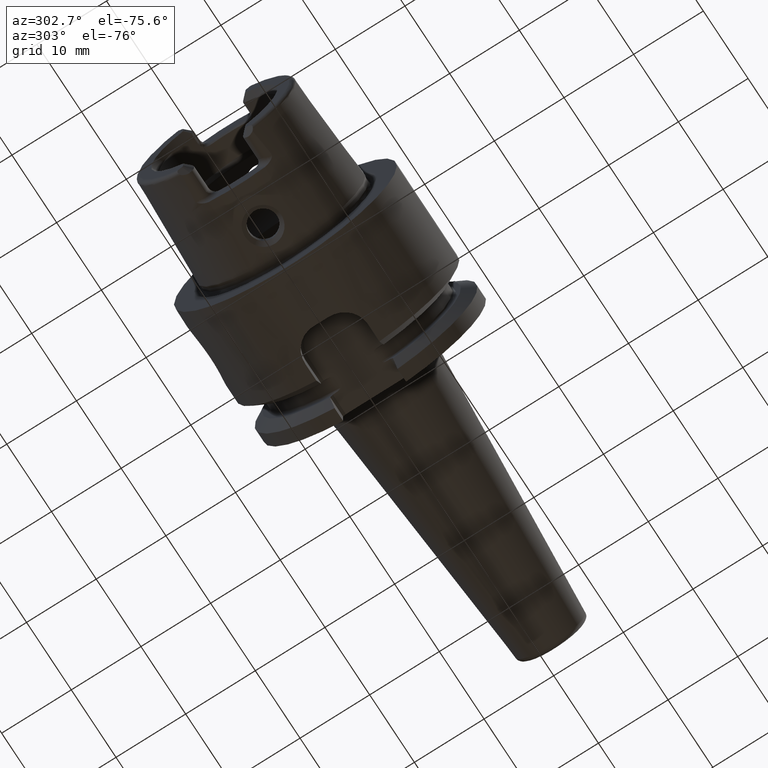
[diagram: clean part render]
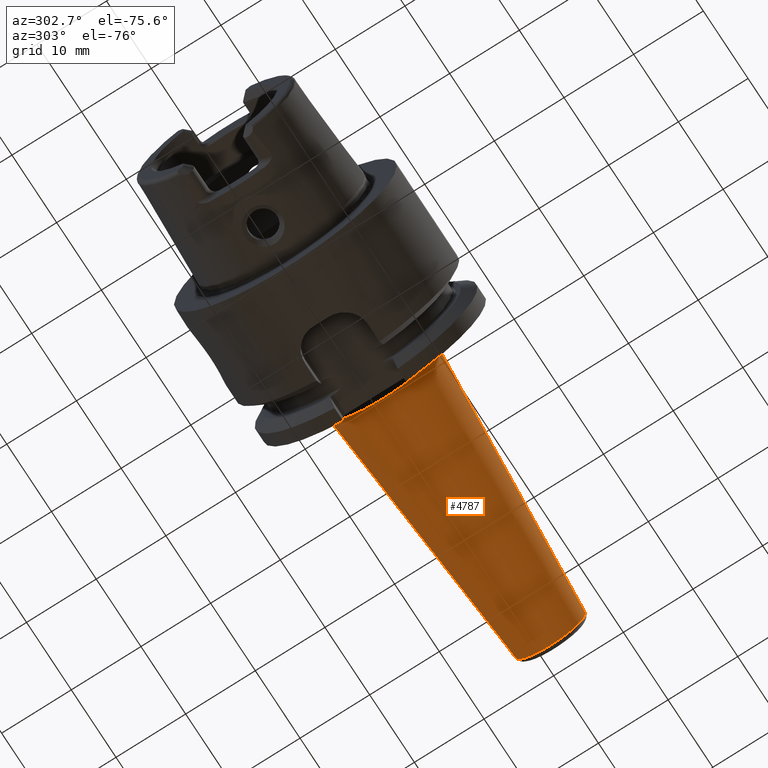
[diagram: same view with one face highlighted and labeled with its STEP entity id]
A machine part, auxiliary view. The second image highlights one B-rep face of the part: STEP entity #4787.
In plain terms, the highlighted conical surface has half-angle 4.5 deg.
Its self-contained STEP definition (entity closure, byte-faithful):
#1625=CARTESIAN_POINT('',(5.926276727658E1,0.E0,0.E0));
#1626=DIRECTION('',(-1.E0,0.E0,0.E0));
#1627=DIRECTION('',(0.E0,1.E0,0.E0));
#1628=AXIS2_PLACEMENT_3D('',#1625,#1626,#1627);
#1630=DIRECTION('',(-9.969173337331E-1,7.845909572784E-2,1.556625420172E-13));
#1631=VECTOR('',#1630,3.758554917259E1);
#1632=CARTESIAN_POINT('',(5.926276727658E1,5.058021473660E0,
-4.043870207013E-12));
#1633=LINE('',#1632,#1631);
#1634=CARTESIAN_POINT('',(2.179308180854E1,0.E0,0.E0));
#1635=DIRECTION('',(1.E0,0.E0,0.E0));
#1636=DIRECTION('',(0.E0,-1.E0,0.E0));
#1637=AXIS2_PLACEMENT_3D('',#1634,#1635,#1636);
#1639=DIRECTION('',(-9.969173337331E-1,-7.845909572784E-2,-1.556882269986E-13));
#1640=VECTOR('',#1639,3.758554917259E1);
#1641=CARTESIAN_POINT('',(5.926276727658E1,-5.058021473660E0,
4.043708437914E-12));
#1642=LINE('',#1641,#1640);
#3079=CARTESIAN_POINT('',(2.179308180854E1,-8.006949674176E0,0.E0));
#3080=CARTESIAN_POINT('',(2.179308180854E1,8.006949674176E0,0.E0));
#3081=VERTEX_POINT('',#3079);
#3082=VERTEX_POINT('',#3080);
#3083=CARTESIAN_POINT('',(5.926276727658E1,5.058021473660E0,0.E0));
#3084=CARTESIAN_POINT('',(5.926276727658E1,-5.058021473660E0,0.E0));
#3085=VERTEX_POINT('',#3083);
#3086=VERTEX_POINT('',#3084);
#4776=CARTESIAN_POINT('',(4.052792454256E1,0.E0,0.E0));
#4777=DIRECTION('',(-1.E0,0.E0,0.E0));
#4778=DIRECTION('',(0.E0,1.E0,0.E0));
#4779=AXIS2_PLACEMENT_3D('',#4776,#4777,#4778);
#4780=CONICAL_SURFACE('',#4779,6.532485573918E0,4.5E0);
#4781=ORIENTED_EDGE('',*,*,#4767,.F.);
#4782=ORIENTED_EDGE('',*,*,#4742,.T.);
#4783=ORIENTED_EDGE('',*,*,#4712,.F.);
#4784=ORIENTED_EDGE('',*,*,#4739,.F.);
#4785=EDGE_LOOP('',(#4781,#4782,#4783,#4784));
#4786=FACE_OUTER_BOUND('',#4785,.F.);
#4787=ADVANCED_FACE('',(#4786),#4780,.T.);
#1629=CIRCLE('',#1628,5.058021473660E0);
#1638=CIRCLE('',#1637,8.006949674176E0);
#4712=EDGE_CURVE('',#3081,#3082,#1638,.T.);
#4739=EDGE_CURVE('',#3086,#3081,#1642,.T.);
#4742=EDGE_CURVE('',#3085,#3082,#1633,.T.);
#4767=EDGE_CURVE('',#3085,#3086,#1629,.T.);